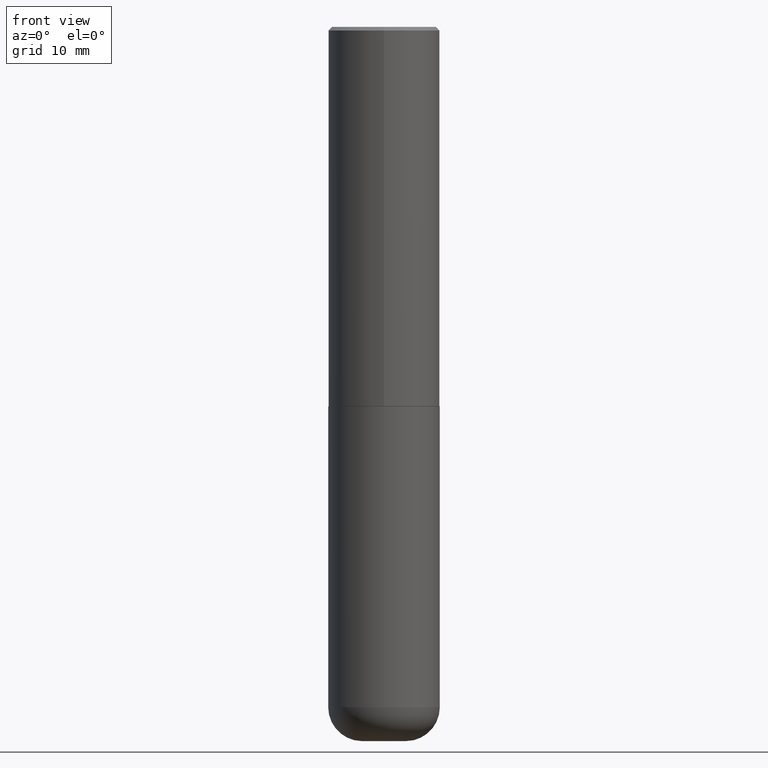
[diagram: clean part render]
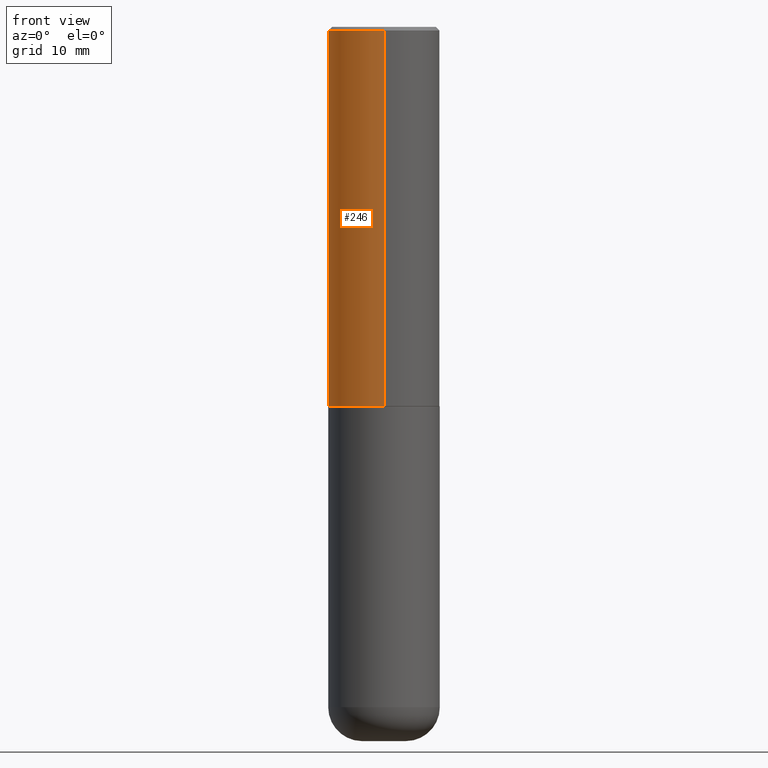
[diagram: same view with one face highlighted and labeled with its STEP entity id]
A machine part, front view. The second image highlights one B-rep face of the part: STEP entity #246.
In plain terms, the highlighted cylindrical surface (partial cylindrical patch) has radius 7.9375 mm, axis along (-0, 0, 1).
Its self-contained STEP definition (entity closure, byte-faithful):
#3 = CARTESIAN_POINT ( 'NONE',  ( 5.192866564986985411E-29, -7.417781183046251262E-15, -2.123999999999999666 ) ) ;
#20 = CARTESIAN_POINT ( 'NONE',  ( -2.143905624303602824E-15, -0.3125000000000000555, -0.01999999999999897693 ) ) ;
#41 = CIRCLE ( 'NONE', #275, 0.3125000000000000000 ) ;
#56 = CARTESIAN_POINT ( 'NONE',  ( 4.889704863452922148E-31, -6.984728044299695791E-17, -0.02000000000000006981 ) ) ;
#60 = EDGE_CURVE ( 'NONE', #394, #68, #362, .T. ) ;
#62 = AXIS2_PLACEMENT_3D ( 'NONE', #3, #285, #408 ) ;
#68 = VERTEX_POINT ( 'NONE', #20 ) ;
#69 = CARTESIAN_POINT ( 'NONE',  ( 2.220446049250340297E-15, 0.3124999999999928391, -2.124000000000000554 ) ) ;
#109 = CARTESIAN_POINT ( 'NONE',  ( 0.000000000000000000, 0.000000000000000000, 0.000000000000000000 ) ) ;
#112 = EDGE_CURVE ( 'NONE', #411, #394, #171, .T. ) ;
#123 = ORIENTED_EDGE ( 'NONE', *, *, #112, .T. ) ;
#170 = LINE ( 'NONE', #270, #373 ) ;
#171 = CIRCLE ( 'NONE', #62, 0.3125000000000002776 ) ;
#176 = DIRECTION ( 'NONE',  ( -6.982962677686265133E-15, -1.000000000000000000, 3.496765431890256920E-15 ) ) ;
#183 = DIRECTION ( 'NONE',  ( -2.444852431726452894E-29, 3.492364022149836358E-15, 1.000000000000000000 ) ) ;
#209 = FACE_OUTER_BOUND ( 'NONE', #371, .T. ) ;
#211 = DIRECTION ( 'NONE',  ( -6.982962677686265133E-15, -1.000000000000000000, 3.492364022149836358E-15 ) ) ;
#212 = ORIENTED_EDGE ( 'NONE', *, *, #286, .F. ) ;
#215 = VERTEX_POINT ( 'NONE', #232 ) ;
#226 = CARTESIAN_POINT ( 'NONE',  ( -2.182175836776908254E-15, -0.3125000000000077161, -2.123999999999998334 ) ) ;
#232 = CARTESIAN_POINT ( 'NONE',  ( 2.182175836776958741E-15, 0.3124999999999999445, -0.02000000000000116268 ) ) ;
#246 = ADVANCED_FACE ( 'NONE', ( #209 ), #396, .T. ) ;
#251 = VECTOR ( 'NONE', #381, 39.37007874015748143 ) ;
#263 = EDGE_CURVE ( 'NONE', #411, #215, #170, .T. ) ;
#270 = CARTESIAN_POINT ( 'NONE',  ( 2.220446049250313475E-15, 0.3125000000000001665, -1.091363756921824478E-15 ) ) ;
#275 = AXIS2_PLACEMENT_3D ( 'NONE', #56, #183, #176 ) ;
#285 = DIRECTION ( 'NONE',  ( -2.444852431726452894E-29, 3.492364022149836358E-15, 1.000000000000000000 ) ) ;
#286 = EDGE_CURVE ( 'NONE', #215, #68, #41, .T. ) ;
#313 = ORIENTED_EDGE ( 'NONE', *, *, #263, .F. ) ;
#336 = DIRECTION ( 'NONE',  ( -2.444852431726452894E-29, 3.492364022149836358E-15, 1.000000000000000000 ) ) ;
#351 = CARTESIAN_POINT ( 'NONE',  ( -2.182175836776959136E-15, -0.3125000000000001665, 1.091363756921824478E-15 ) ) ;
#352 = ORIENTED_EDGE ( 'NONE', *, *, #60, .T. ) ;
#362 = LINE ( 'NONE', #351, #251 ) ;
#366 = AXIS2_PLACEMENT_3D ( 'NONE', #109, #336, #211 ) ;
#371 = EDGE_LOOP ( 'NONE', ( #313, #123, #352, #212 ) ) ;
#373 = VECTOR ( 'NONE', #398, 39.37007874015748143 ) ;
#381 = DIRECTION ( 'NONE',  ( -2.444852431726452614E-29, 3.492364022149836358E-15, 1.000000000000000000 ) ) ;
#394 = VERTEX_POINT ( 'NONE', #226 ) ;
#396 = CYLINDRICAL_SURFACE ( 'NONE', #366, 0.3125000000000001665 ) ;
#398 = DIRECTION ( 'NONE',  ( -2.444852431726452614E-29, 3.492364022149836358E-15, 1.000000000000000000 ) ) ;
#408 = DIRECTION ( 'NONE',  ( -6.982962677686265922E-15, -1.000000000000000000, 3.496765431890253764E-15 ) ) ;
#411 = VERTEX_POINT ( 'NONE', #69 ) ;